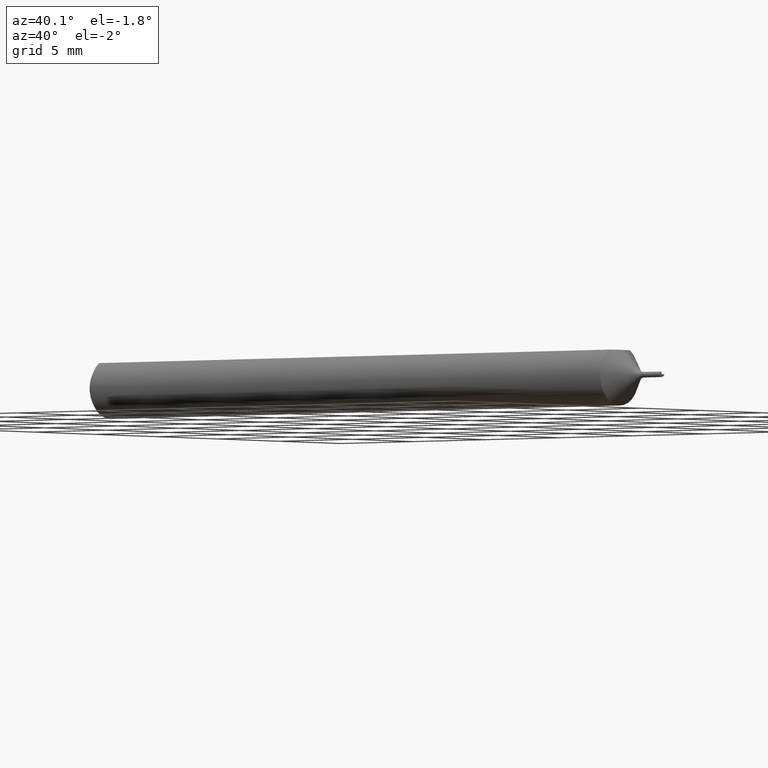
[diagram: clean part render]
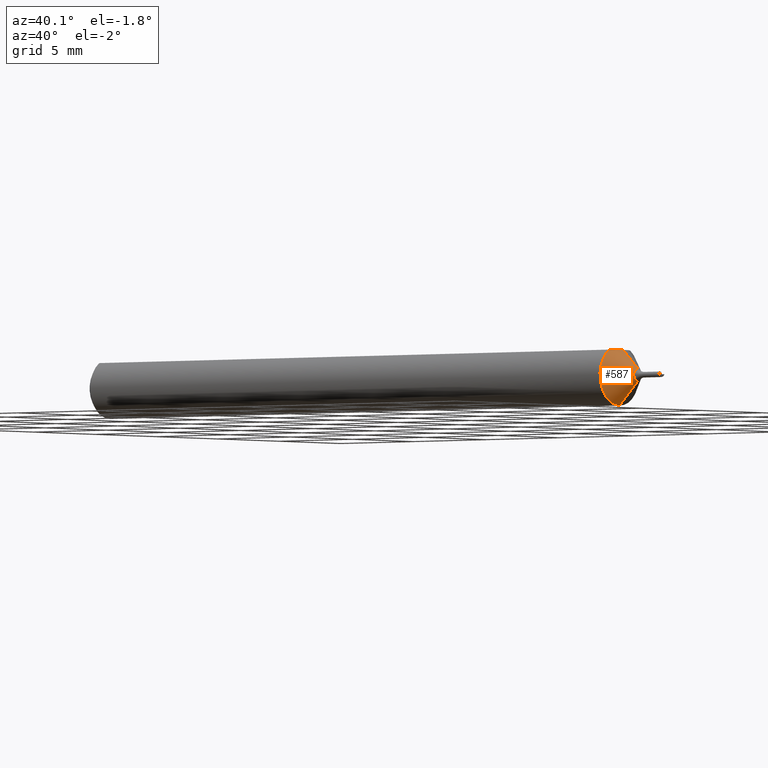
[diagram: same view with one face highlighted and labeled with its STEP entity id]
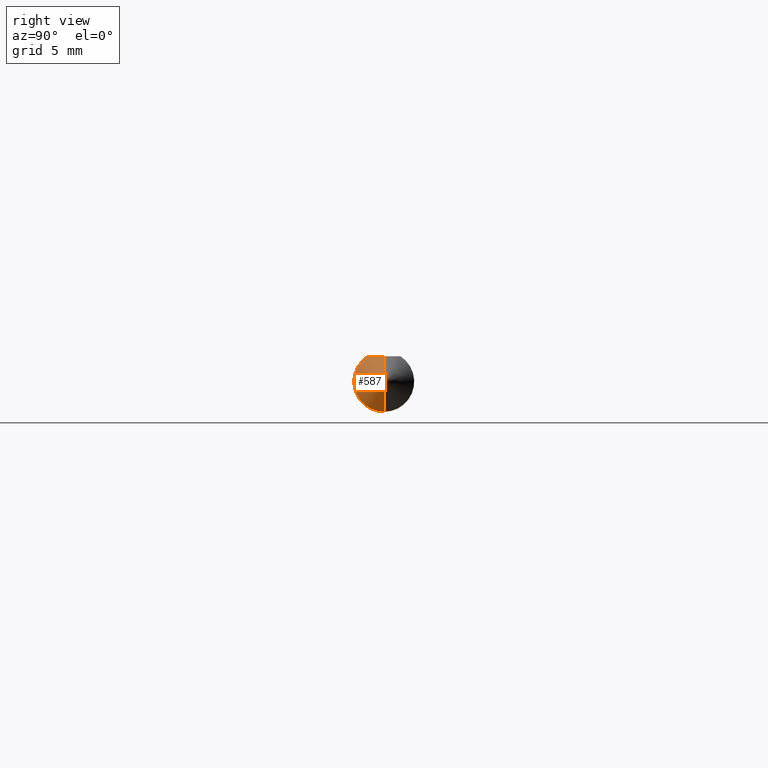
[diagram: same view with one face highlighted and labeled with its STEP entity id]
A machine part, auxiliary view. The second image highlights one B-rep face of the part: STEP entity #587.
A second angle (right view) of the same face is appended — the face is thin or edge-on in the first view.
In plain terms, the highlighted conical surface has half-angle 45 deg.
Its self-contained STEP definition (entity closure, byte-faithful):
#7 = CARTESIAN_POINT ( 'NONE',  ( 1.434677669529663691, 0.000000000000000000, 0.01307233047033636367 ) ) ;
#10 = CARTESIAN_POINT ( 'NONE',  ( 1.434677669529663691, 1.600898766789383965E-18, -0.01307233047033636193 ) ) ;
#13 = CARTESIAN_POINT ( 'NONE',  ( 1.434677669529663691, 1.600898766789384158E-18, -0.01307233047033636367 ) ) ;
#29 = CONICAL_SURFACE ( 'NONE', #524, 0.01307233047033636367, 0.7853981633974501664 ) ;
#35 = CARTESIAN_POINT ( 'NONE',  ( 1.385400000000000187, 7.635672792683749753E-18, -0.06235000000000000958 ) ) ;
#61 = CARTESIAN_POINT ( 'NONE',  ( 1.434677669529663691, 0.000000000000000000, 0.000000000000000000 ) ) ;
#64 = FACE_OUTER_BOUND ( 'NONE', #438, .T. ) ;
#67 = CARTESIAN_POINT ( 'NONE',  ( 1.395400000000000196, -0.005922649332173337763, 0.05235000000000002152 ) ) ;
#78 = EDGE_CURVE ( 'NONE', #531, #465, #220, .T. ) ;
#83 = CIRCLE ( 'NONE', #343, 0.01307233047033636367 ) ;
#101 = ORIENTED_EDGE ( 'NONE', *, *, #485, .T. ) ;
#106 = EDGE_CURVE ( 'NONE', #465, #362, #132, .T. ) ;
#113 = DIRECTION ( 'NONE',  ( -1.000000000000000000, 0.000000000000000000, -0.000000000000000000 ) ) ;
#121 = DIRECTION ( 'NONE',  ( -1.000000000000000000, 0.000000000000000000, -0.000000000000000000 ) ) ;
#132 = B_SPLINE_CURVE_WITH_KNOTS ( 'NONE', 3,
 ( #215, #67, #213, #410, #415, #271 ),
 .UNSPECIFIED., .F., .F.,
 ( 4, 2, 4 ),
 ( 0.003147381525721188247, 0.003596555799849169080, 0.004045730073977149913 ),
 .UNSPECIFIED. ) ;
#164 = LINE ( 'NONE', #13, #472 ) ;
#175 = CARTESIAN_POINT ( 'NONE',  ( 1.434677669529663691, 0.000000000000000000, 0.01307233047033636193 ) ) ;
#213 = CARTESIAN_POINT ( 'NONE',  ( 1.394327790335842199, -0.01191871399956039371, 0.05235000000000002152 ) ) ;
#215 = CARTESIAN_POINT ( 'NONE',  ( 1.395400000000000196, 2.856421857282948772E-21, 0.05235000000000001458 ) ) ;
#217 = CARTESIAN_POINT ( 'NONE',  ( 1.395400000000000196, 2.856421857282948772E-21, 0.05235000000000001458 ) ) ;
#220 = LINE ( 'NONE', #7, #443 ) ;
#241 = ORIENTED_EDGE ( 'NONE', *, *, #576, .F. ) ;
#271 = CARTESIAN_POINT ( 'NONE',  ( 1.385400000000000187, -0.03386738844375220686, 0.05235000000000000070 ) ) ;
#280 = VERTEX_POINT ( 'NONE', #35 ) ;
#301 = AXIS2_PLACEMENT_3D ( 'NONE', #406, #113, #563 ) ;
#316 = DIRECTION ( 'NONE',  ( 0.000000000000000000, 0.000000000000000000, 1.000000000000000000 ) ) ;
#338 = CARTESIAN_POINT ( 'NONE',  ( 1.385400000000000187, -0.03386738844375220686, 0.05235000000000000070 ) ) ;
#343 = AXIS2_PLACEMENT_3D ( 'NONE', #61, #548, #604 ) ;
#362 = VERTEX_POINT ( 'NONE', #338 ) ;
#406 = CARTESIAN_POINT ( 'NONE',  ( 1.385400000000000187, 0.000000000000000000, 0.000000000000000000 ) ) ;
#410 = CARTESIAN_POINT ( 'NONE',  ( 1.390736344161275229, -0.02320948534756176948, 0.05235000000000001458 ) ) ;
#411 = DIRECTION ( 'NONE',  ( -0.7071067811865462405, 8.659560562354948882E-17, -0.7071067811865487940 ) ) ;
#415 = CARTESIAN_POINT ( 'NONE',  ( 1.388241631301277534, -0.02863593364975394046, 0.05235000000000002152 ) ) ;
#436 = ORIENTED_EDGE ( 'NONE', *, *, #467, .F. ) ;
#438 = EDGE_LOOP ( 'NONE', ( #436, #101, #582, #526, #241 ) ) ;
#443 = VECTOR ( 'NONE', #497, 39.37007874015748143 ) ;
#455 = CARTESIAN_POINT ( 'NONE',  ( 1.434677669529663691, 0.000000000000000000, 0.000000000000000000 ) ) ;
#465 = VERTEX_POINT ( 'NONE', #217 ) ;
#467 = EDGE_CURVE ( 'NONE', #517, #280, #164, .T. ) ;
#472 = VECTOR ( 'NONE', #411, 39.37007874015748143 ) ;
#485 = EDGE_CURVE ( 'NONE', #517, #531, #83, .T. ) ;
#497 = DIRECTION ( 'NONE',  ( -0.7071067811865462405, 0.000000000000000000, 0.7071067811865487940 ) ) ;
#517 = VERTEX_POINT ( 'NONE', #10 ) ;
#524 = AXIS2_PLACEMENT_3D ( 'NONE', #455, #121, #316 ) ;
#526 = ORIENTED_EDGE ( 'NONE', *, *, #106, .T. ) ;
#531 = VERTEX_POINT ( 'NONE', #175 ) ;
#548 = DIRECTION ( 'NONE',  ( -1.000000000000000000, 0.000000000000000000, -0.000000000000000000 ) ) ;
#563 = DIRECTION ( 'NONE',  ( 0.000000000000000000, 0.000000000000000000, 1.000000000000000000 ) ) ;
#576 = EDGE_CURVE ( 'NONE', #280, #362, #609, .T. ) ;
#582 = ORIENTED_EDGE ( 'NONE', *, *, #78, .T. ) ;
#587 = ADVANCED_FACE ( 'NONE', ( #64 ), #29, .T. ) ;
#604 = DIRECTION ( 'NONE',  ( 0.000000000000000000, 0.000000000000000000, 1.000000000000000000 ) ) ;
#609 = CIRCLE ( 'NONE', #301, 0.06235000000000000264 ) ;